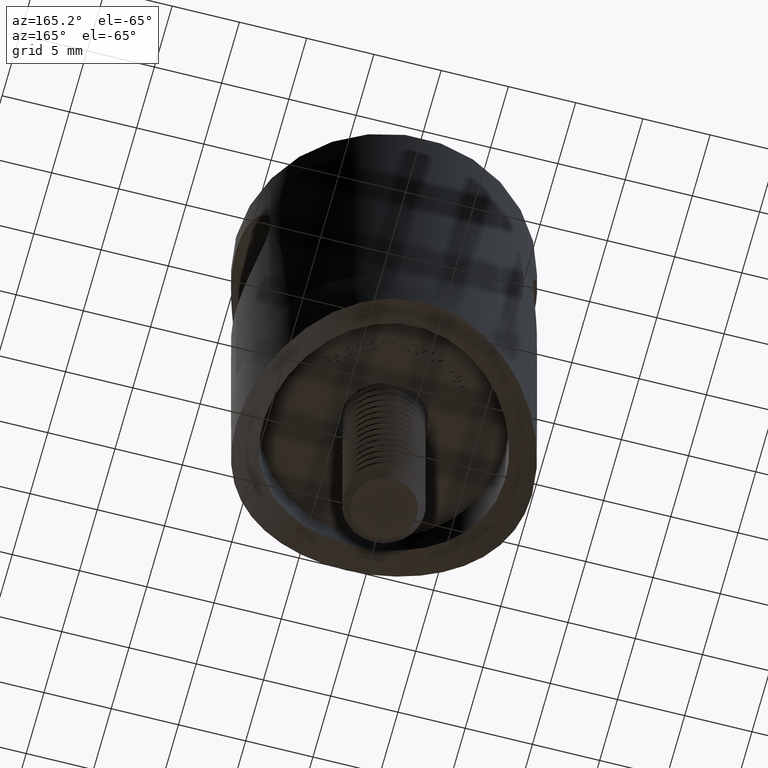
[diagram: clean part render]
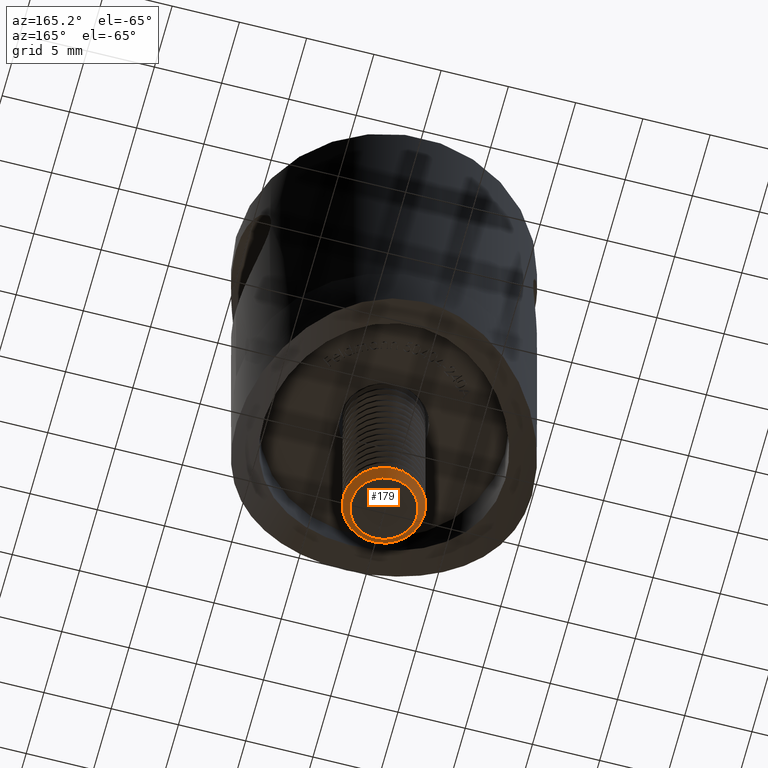
[diagram: same view with one face highlighted and labeled with its STEP entity id]
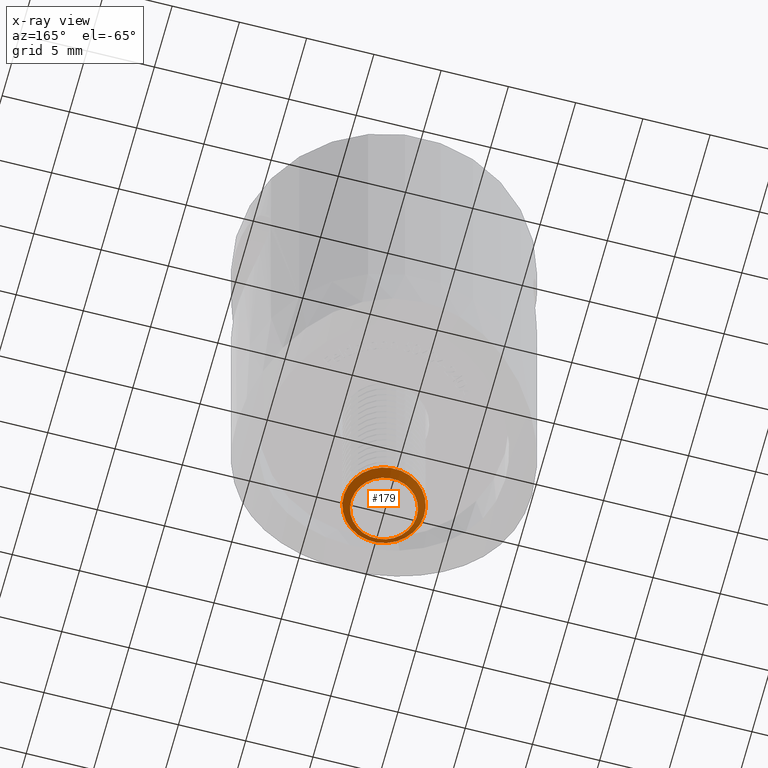
[diagram: x-ray of the same camera — body ghosted, the highlighted face saturated]
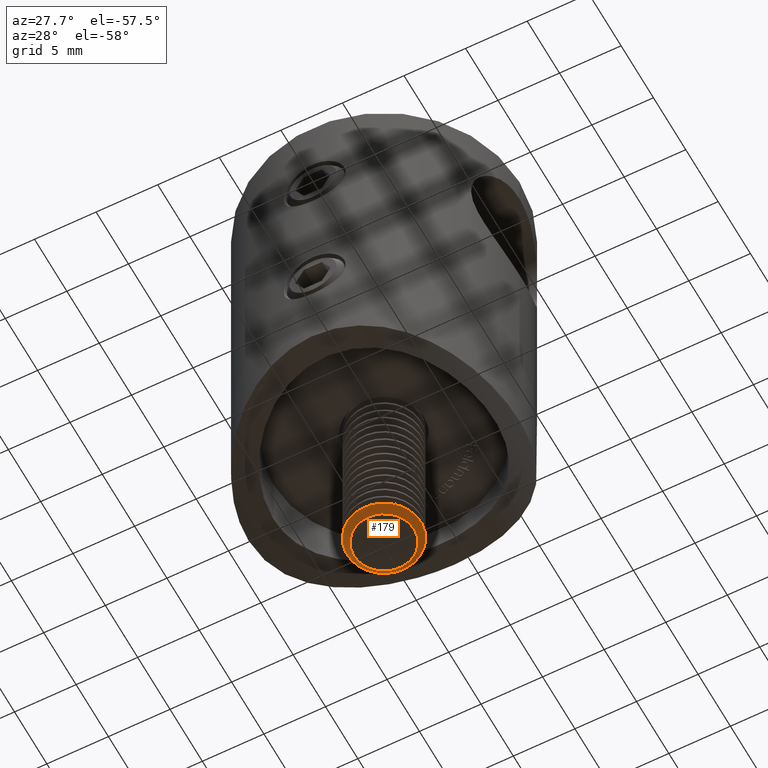
[diagram: same view with one face highlighted and labeled with its STEP entity id]
A machine part, auxiliary view. The second image highlights one B-rep face of the part: STEP entity #179.
The next image is the same camera in x-ray: the body ghosted, the highlighted face saturated — about 0% of this face is hidden behind the body in this view.
A second angle (auxiliary view) of the same face is appended — the face is thin or edge-on in the first view.
In plain terms, the highlighted conical surface has half-angle 45 deg.
Its self-contained STEP definition (entity closure, byte-faithful):
#179 = ADVANCED_FACE ( 'NONE', ( #12082, #4617 ), #15861, .T. ) ;
#1023 = DIRECTION ( 'NONE',  ( 0.0000000000000000000, 0.0000000000000000000, 1.000000000000000000 ) ) ;
#1880 = EDGE_CURVE ( 'NONE', #21443, #21443, #8602, .T. ) ;
#3803 = EDGE_LOOP ( 'NONE', ( #10767 ) ) ;
#3816 = CARTESIAN_POINT ( 'NONE',  ( 24.44550000000003100, 0.0000000000000000000, 0.0000000000000000000 ) ) ;
#4617 = FACE_BOUND ( 'NONE', #3803, .T. ) ;
#5377 = DIRECTION ( 'NONE',  ( -1.000000000000000000, -0.0000000000000000000, -0.0000000000000000000 ) ) ;
#6113 = CARTESIAN_POINT ( 'NONE',  ( 25.00000000000000000, 0.0000000000000000000, 2.445500000000000000 ) ) ;
#6220 = CARTESIAN_POINT ( 'NONE',  ( 25.00000000000000000, 0.0000000000000000000, 0.0000000000000000000 ) ) ;
#6294 = DIRECTION ( 'NONE',  ( 0.0000000000000000000, 0.0000000000000000000, 1.000000000000000000 ) ) ;
#7880 = DIRECTION ( 'NONE',  ( -1.000000000000000000, -0.0000000000000000000, -0.0000000000000000000 ) ) ;
#8138 = EDGE_LOOP ( 'NONE', ( #15865 ) ) ;
#8602 = CIRCLE ( 'NONE', #19091, 2.445500000000000000 ) ;
#10767 = ORIENTED_EDGE ( 'NONE', *, *, #1880, .T. ) ;
#12082 = FACE_OUTER_BOUND ( 'NONE', #8138, .T. ) ;
#12232 = DIRECTION ( 'NONE',  ( 0.0000000000000000000, 0.0000000000000000000, 1.000000000000000000 ) ) ;
#12729 = CARTESIAN_POINT ( 'NONE',  ( 25.00000000000000000, 0.0000000000000000000, 0.0000000000000000000 ) ) ;
#14378 = CIRCLE ( 'NONE', #21596, 3.000000000000000900 ) ;
#15558 = VERTEX_POINT ( 'NONE', #21577 ) ;
#15814 = AXIS2_PLACEMENT_3D ( 'NONE', #6220, #16526, #6294 ) ;
#15861 = CONICAL_SURFACE ( 'NONE', #15814, 2.445500000000000000, 0.7853981633974744800 ) ;
#15865 = ORIENTED_EDGE ( 'NONE', *, *, #21431, .F. ) ;
#16526 = DIRECTION ( 'NONE',  ( -1.000000000000000000, -0.0000000000000000000, -0.0000000000000000000 ) ) ;
#19091 = AXIS2_PLACEMENT_3D ( 'NONE', #12729, #7880, #1023 ) ;
#21431 = EDGE_CURVE ( 'NONE', #15558, #15558, #14378, .T. ) ;
#21443 = VERTEX_POINT ( 'NONE', #6113 ) ;
#21577 = CARTESIAN_POINT ( 'NONE',  ( 24.44550000000003100, 0.0000000000000000000, 3.000000000000000900 ) ) ;
#21596 = AXIS2_PLACEMENT_3D ( 'NONE', #3816, #5377, #12232 ) ;